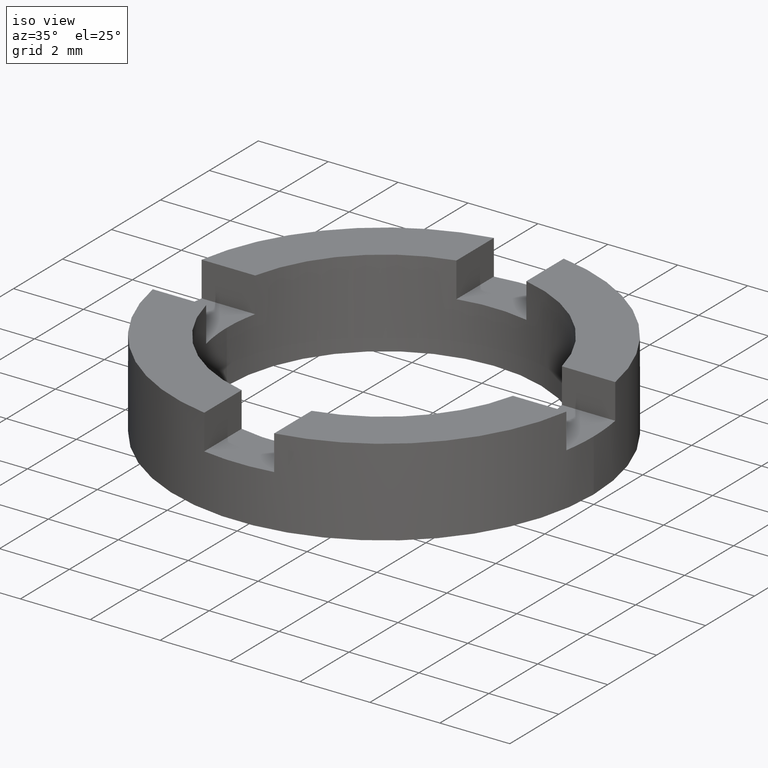
[diagram: clean part render]
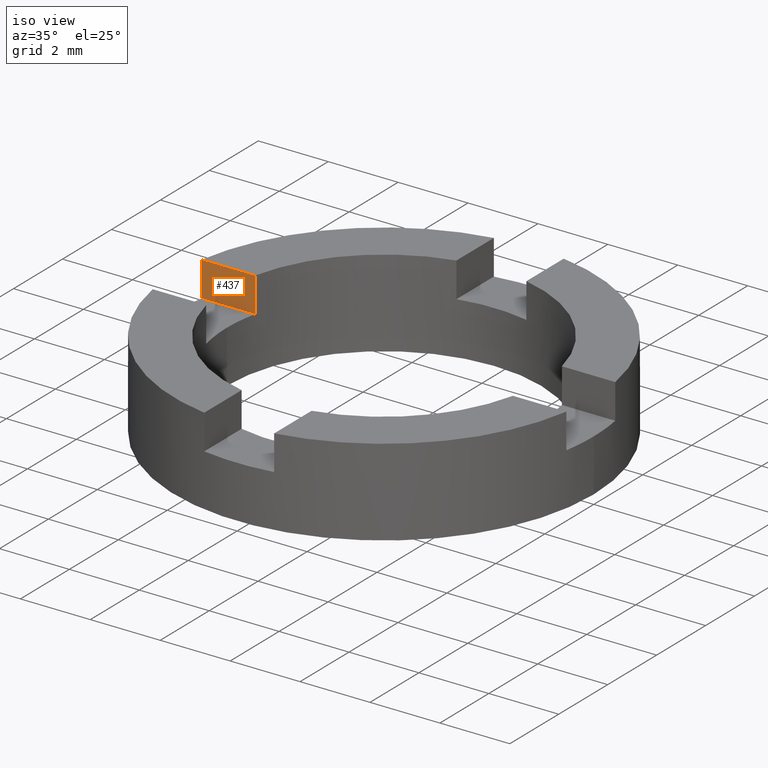
[diagram: same view with one face highlighted and labeled with its STEP entity id]
A machine part, iso view. The second image highlights one B-rep face of the part: STEP entity #437.
In plain terms, the highlighted planar face has unit normal (-0, -1, 0).
Its self-contained STEP definition (entity closure, byte-faithful):
#4 = LINE ( 'NONE', #417, #275 ) ;
#17 = ORIENTED_EDGE ( 'NONE', *, *, #90, .F. ) ;
#65 = VERTEX_POINT ( 'NONE', #469 ) ;
#76 = VERTEX_POINT ( 'NONE', #551 ) ;
#82 = LINE ( 'NONE', #161, #648 ) ;
#90 = EDGE_CURVE ( 'NONE', #256, #398, #766, .T. ) ;
#108 = FACE_OUTER_BOUND ( 'NONE', #351, .T. ) ;
#110 = EDGE_CURVE ( 'NONE', #65, #76, #240, .T. ) ;
#114 = DIRECTION ( 'NONE',  ( -3.758567531283081775E-15, -1.000000000000000000, 0.000000000000000000 ) ) ;
#123 = ORIENTED_EDGE ( 'NONE', *, *, #110, .T. ) ;
#143 = ORIENTED_EDGE ( 'NONE', *, *, #346, .F. ) ;
#161 = CARTESIAN_POINT ( 'NONE',  ( -4.387482193696056854, 1.000000000000015321, 1.500000000000000000 ) ) ;
#165 = CARTESIAN_POINT ( 'NONE',  ( 3.758567531283077831E-15, 0.9999999999999988898, 2.500000000000000000 ) ) ;
#166 = CARTESIAN_POINT ( 'NONE',  ( -4.387482193696056854, 1.000000000000015321, 2.500000000000000000 ) ) ;
#173 = AXIS2_PLACEMENT_3D ( 'NONE', #587, #114, #285 ) ;
#193 = DIRECTION ( 'NONE',  ( -0.000000000000000000, -0.000000000000000000, 1.000000000000000000 ) ) ;
#221 = VECTOR ( 'NONE', #414, 1000.000000000000000 ) ;
#240 = LINE ( 'NONE', #578, #243 ) ;
#243 = VECTOR ( 'NONE', #730, 1000.000000000000000 ) ;
#256 = VERTEX_POINT ( 'NONE', #324 ) ;
#275 = VECTOR ( 'NONE', #670, 1000.000000000000000 ) ;
#285 = DIRECTION ( 'NONE',  ( 1.000000000000000000, -3.758567531283081775E-15, 0.000000000000000000 ) ) ;
#324 = CARTESIAN_POINT ( 'NONE',  ( -5.916079783099614353, 1.000000000000021316, 2.500000000000000000 ) ) ;
#346 = EDGE_CURVE ( 'NONE', #65, #256, #4, .T. ) ;
#351 = EDGE_LOOP ( 'NONE', ( #17, #143, #123, #669 ) ) ;
#398 = VERTEX_POINT ( 'NONE', #166 ) ;
#414 = DIRECTION ( 'NONE',  ( 1.000000000000000000, -3.758567531283081775E-15, 0.000000000000000000 ) ) ;
#417 = CARTESIAN_POINT ( 'NONE',  ( -5.916079783099614353, 1.000000000000021316, 1.500000000000000000 ) ) ;
#437 = ADVANCED_FACE ( 'NONE', ( #108 ), #705, .T. ) ;
#469 = CARTESIAN_POINT ( 'NONE',  ( -5.916079783099614353, 1.000000000000021316, 1.500000000000000000 ) ) ;
#551 = CARTESIAN_POINT ( 'NONE',  ( -4.387482193696056854, 1.000000000000015321, 1.500000000000000000 ) ) ;
#578 = CARTESIAN_POINT ( 'NONE',  ( 3.758567531283077831E-15, 0.9999999999999988898, 1.500000000000000000 ) ) ;
#587 = CARTESIAN_POINT ( 'NONE',  ( 3.758567531283077831E-15, 0.9999999999999988898, 1.500000000000000000 ) ) ;
#606 = EDGE_CURVE ( 'NONE', #76, #398, #82, .T. ) ;
#648 = VECTOR ( 'NONE', #193, 1000.000000000000000 ) ;
#669 = ORIENTED_EDGE ( 'NONE', *, *, #606, .T. ) ;
#670 = DIRECTION ( 'NONE',  ( -0.000000000000000000, -0.000000000000000000, 1.000000000000000000 ) ) ;
#705 = PLANE ( 'NONE',  #173 ) ;
#730 = DIRECTION ( 'NONE',  ( 1.000000000000000000, -3.758567531283081775E-15, 0.000000000000000000 ) ) ;
#766 = LINE ( 'NONE', #165, #221 ) ;